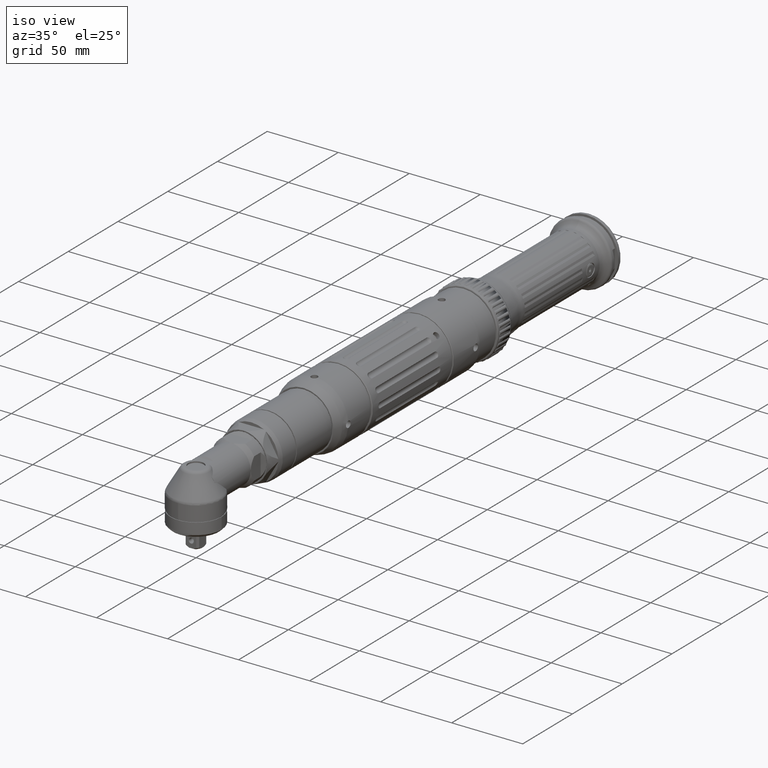
[diagram: clean part render]
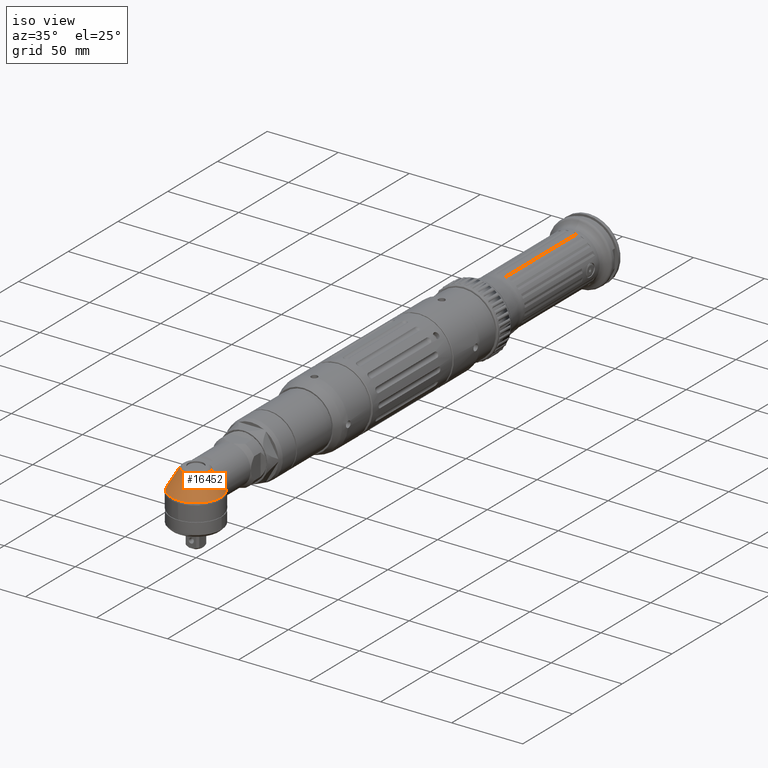
[diagram: same view with one face highlighted and labeled with its STEP entity id]
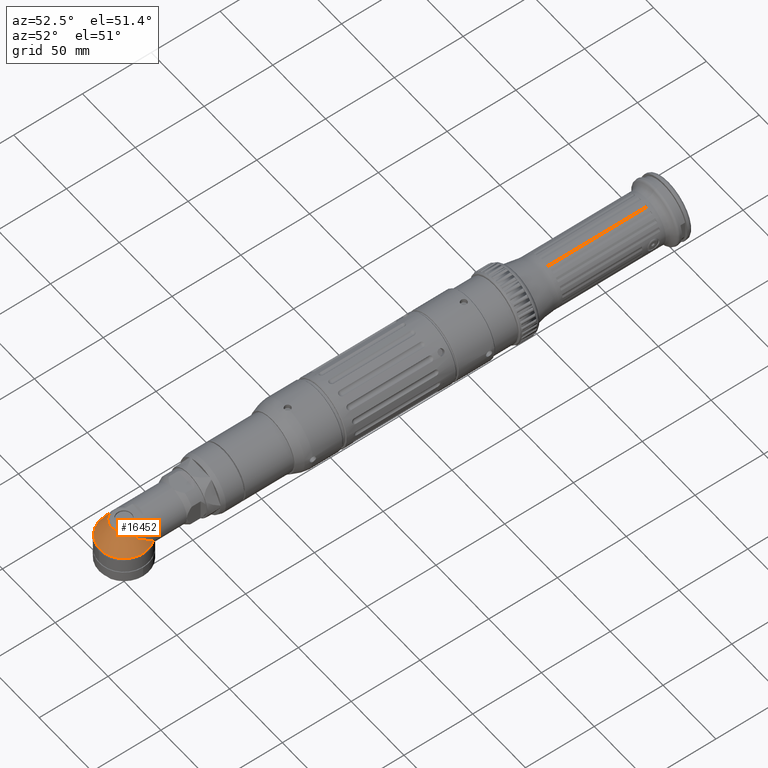
[diagram: same view with one face highlighted and labeled with its STEP entity id]
A machine part, iso view. The second image highlights one B-rep face of the part: STEP entity #16452.
A second angle (auxiliary view) of the same face is appended — the face is thin or edge-on in the first view.
In plain terms, the highlighted conical surface has half-angle 30 deg.
Its self-contained STEP definition (entity closure, byte-faithful):
#1109=LINE('',#30192,#1971);
#1110=LINE('',#30197,#1972);
#1971=VECTOR('',#23226,10.);
#1972=VECTOR('',#23231,10.);
#2054=CONICAL_SURFACE('',#18485,13.25,30.);
#2200=B_SPLINE_CURVE_WITH_KNOTS('',3,(#30262,#30263,#30264,#30265,#30266,
#30267,#30268,#30269,#30270,#30271),.UNSPECIFIED.,.F.,.F.,(4,2,2,2,4),(-0.705998900967671,
-0.444792625547526,-0.222396312773763,-0.111198156386882,0.),
 .UNSPECIFIED.);
#2201=B_SPLINE_CURVE_WITH_KNOTS('',3,(#30273,#30274,#30275,#30276,#30277,
#30278,#30279,#30280,#30281,#30282,#30283,#30284,#30285,#30286),
 .UNSPECIFIED.,.F.,.F.,(4,2,2,2,2,2,4),(3.40530504642907,3.50394886458541,
3.60259268274176,3.79988031905444,4.19445559167981,4.58903086430518,4.85221618798012),
 .UNSPECIFIED.);
#2204=B_SPLINE_CURVE_WITH_KNOTS('',3,(#30302,#30303,#30304,#30305,#30306,
#30307,#30308,#30309,#30310,#30311,#30312,#30313,#30314,#30315),
 .UNSPECIFIED.,.F.,.F.,(4,2,2,2,2,2,4),(1.95839390487804,2.22157922855296,
2.61615450117833,3.0107297738037,3.20801741011639,3.30666122827273,3.40530504642907),
 .UNSPECIFIED.);
#2205=B_SPLINE_CURVE_WITH_KNOTS('',3,(#30317,#30318,#30319,#30320,#30321,
#30322,#30323,#30324,#30325,#30326),.UNSPECIFIED.,.F.,.F.,(4,2,2,2,4),(3.17390460403441,
3.28510276042129,3.39630091680817,3.61869722958194,3.87990350500208),
 .UNSPECIFIED.);
#3699=FACE_OUTER_BOUND('',#4938,.T.);
#4938=EDGE_LOOP('',(#13710,#13711,#13712,#13713,#13714,#13715,#13716,#13717));
#5980=CIRCLE('',#18484,9.36602540378446);
#5981=CIRCLE('',#18486,17.5980762113533);
#7385=VERTEX_POINT('',#30190);
#7386=VERTEX_POINT('',#30191);
#7387=VERTEX_POINT('',#30195);
#7388=VERTEX_POINT('',#30196);
#7400=VERTEX_POINT('',#30245);
#7401=VERTEX_POINT('',#30272);
#7402=VERTEX_POINT('',#30295);
#7403=VERTEX_POINT('',#30316);
#9504=EDGE_CURVE('',#7385,#7386,#1109,.T.);
#9506=EDGE_CURVE('',#7387,#7388,#1110,.T.);
#9520=EDGE_CURVE('',#7400,#7387,#2200,.T.);
#9521=EDGE_CURVE('',#7388,#7401,#2201,.T.);
#9524=EDGE_CURVE('',#7402,#7385,#2204,.T.);
#9525=EDGE_CURVE('',#7386,#7403,#2205,.T.);
#9561=EDGE_CURVE('',#7403,#7400,#5980,.T.);
#9562=EDGE_CURVE('',#7401,#7402,#5981,.T.);
#13710=ORIENTED_EDGE('',*,*,#9562,.F.);
#13711=ORIENTED_EDGE('',*,*,#9521,.F.);
#13712=ORIENTED_EDGE('',*,*,#9506,.F.);
#13713=ORIENTED_EDGE('',*,*,#9520,.F.);
#13714=ORIENTED_EDGE('',*,*,#9561,.F.);
#13715=ORIENTED_EDGE('',*,*,#9525,.F.);
#13716=ORIENTED_EDGE('',*,*,#9504,.F.);
#13717=ORIENTED_EDGE('',*,*,#9524,.F.);
#16452=ADVANCED_FACE('',(#3699),#2054,.T.);
#18484=AXIS2_PLACEMENT_3D('',#30422,#23333,#23334);
#18485=AXIS2_PLACEMENT_3D('',#30423,#23335,#23336);
#18486=AXIS2_PLACEMENT_3D('',#30424,#23337,#23338);
#23226=DIRECTION('',(0.5,-4.16518804416773E-16,0.866025403784439));
#23231=DIRECTION('',(0.5,4.62138241812479E-16,-0.866025403784439));
#23333=DIRECTION('center_axis',(4.83392951289186E-16,-5.0729288216582E-16,
1.));
#23334=DIRECTION('ref_axis',(1.06851777353073E-16,-1.,-5.0729288216582E-16));
#23335=DIRECTION('center_axis',(-9.24389584179921E-18,5.0729288216582E-16,
-1.));
#23336=DIRECTION('ref_axis',(4.56194373957058E-17,-1.,-5.0729288216582E-16));
#23337=DIRECTION('center_axis',(2.22999789343787E-17,4.12661257837284E-16,
-1.));
#23338=DIRECTION('ref_axis',(1.06851777353074E-16,-1.,-4.12661257837284E-16));
#30190=CARTESIAN_POINT('',(-12.9873605377569,0.,5.22766355672545));
#30191=CARTESIAN_POINT('',(-11.0209697114409,-1.77635683940025E-14,8.63355237544209));
#30192=CARTESIAN_POINT('',(-13.25,-1.77635683940025E-14,4.77275866404775));
#30195=CARTESIAN_POINT('',(11.0209697114409,-3.5527136788005E-14,8.63355237544209));
#30196=CARTESIAN_POINT('',(12.9873605377569,0.,5.22766355672545));
#30197=CARTESIAN_POINT('',(13.25,-1.77635683940025E-14,4.77275866404775));
#30245=CARTESIAN_POINT('',(7.98435971133569,4.8961650160442,11.4999999999999));
#30262=CARTESIAN_POINT('Ctrl Pts',(7.98435971133569,4.8961650160442,11.4999999999999));
#30263=CARTESIAN_POINT('Ctrl Pts',(8.58109122359698,4.38062505155532,11.0856939960883));
#30264=CARTESIAN_POINT('Ctrl Pts',(9.11833806412106,3.81911233981468,10.6416979802047));
#30265=CARTESIAN_POINT('Ctrl Pts',(9.96174800663609,2.75159290856838,9.85120130894754));
#30266=CARTESIAN_POINT('Ctrl Pts',(10.2865087442621,2.261690489635,9.50477021551288));
#30267=CARTESIAN_POINT('Ctrl Pts',(10.6726741160042,1.49356799530521,9.062693836308));
#30268=CARTESIAN_POINT('Ctrl Pts',(10.7835015732714,1.23470723858199,8.92943600330155));
#30269=CARTESIAN_POINT('Ctrl Pts',(10.9560612316619,0.67200953980814,8.7168499814199));
#30270=CARTESIAN_POINT('Ctrl Pts',(11.0209697114409,0.370660521289583,8.63355237544207));
#30271=CARTESIAN_POINT('Ctrl Pts',(11.0209697114409,-3.5527136788005E-14,
8.63355237544207));
#30272=CARTESIAN_POINT('',(13.7255824734839,11.0136584341454,-2.75833024919363));
#30273=CARTESIAN_POINT('Ctrl Pts',(12.9873605377568,1.38777878078145E-16,
5.22766355672547));
#30274=CARTESIAN_POINT('Ctrl Pts',(12.9873605377568,0.328812727187806,5.22766355672547));
#30275=CARTESIAN_POINT('Ctrl Pts',(13.0149731918327,0.611384943635986,5.15949552771257));
#30276=CARTESIAN_POINT('Ctrl Pts',(13.0870600299516,1.13875577901023,4.97380905121899));
#30277=CARTESIAN_POINT('Ctrl Pts',(13.1320440476468,1.38296120990084,4.85480759324434));
#30278=CARTESIAN_POINT('Ctrl Pts',(13.2739690470323,2.10169545294093,4.45873115142923));
#30279=CARTESIAN_POINT('Ctrl Pts',(13.3768283902352,2.55749382319678,4.14550432945685));
#30280=CARTESIAN_POINT('Ctrl Pts',(13.6648516191554,3.9617366387581,3.12582885194596));
#30281=CARTESIAN_POINT('Ctrl Pts',(13.826235647691,4.92235219835814,2.3482354962127));
#30282=CARTESIAN_POINT('Ctrl Pts',(14.0062417895303,6.91560433181142,0.710064637287446));
#30283=CARTESIAN_POINT('Ctrl Pts',(14.0262380501173,7.9447906766347,-0.154835893213721));
#30284=CARTESIAN_POINT('Ctrl Pts',(13.9199998022954,9.65734875289019,-1.60356852657814));
#30285=CARTESIAN_POINT('Ctrl Pts',(13.840726626019,10.3415958326059,-2.1853674712827));
#30286=CARTESIAN_POINT('Ctrl Pts',(13.7255824734835,11.0136584341476,-2.75833024919131));
#30295=CARTESIAN_POINT('',(-13.7255824734839,11.0136584341455,-2.75833024919363));
#30302=CARTESIAN_POINT('Ctrl Pts',(-13.7255824734835,11.0136584341475,-2.7583302491912));
#30303=CARTESIAN_POINT('Ctrl Pts',(-13.840726626019,10.3415958326058,-2.18536747128264));
#30304=CARTESIAN_POINT('Ctrl Pts',(-13.9199998022954,9.65734875289016,-1.60356852657811));
#30305=CARTESIAN_POINT('Ctrl Pts',(-14.0262380501173,7.9447906766347,-0.154835893213717));
#30306=CARTESIAN_POINT('Ctrl Pts',(-14.0062417895303,6.91560433181142,0.710064637287457));
#30307=CARTESIAN_POINT('Ctrl Pts',(-13.826235647691,4.92235219835814,2.34823549621271));
#30308=CARTESIAN_POINT('Ctrl Pts',(-13.6648516191554,3.9617366387581,3.12582885194595));
#30309=CARTESIAN_POINT('Ctrl Pts',(-13.3768283902352,2.55749382319678,4.14550432945685));
#30310=CARTESIAN_POINT('Ctrl Pts',(-13.2739690470323,2.10169545294093,4.45873115142922));
#30311=CARTESIAN_POINT('Ctrl Pts',(-13.1320440476468,1.38296120990084,4.85480759324434));
#30312=CARTESIAN_POINT('Ctrl Pts',(-13.0870600299516,1.13875577901023,4.97380905121897));
#30313=CARTESIAN_POINT('Ctrl Pts',(-13.0149731918327,0.611384943635986,
5.15949552771256));
#30314=CARTESIAN_POINT('Ctrl Pts',(-12.9873605377568,0.328812727187806,
5.22766355672547));
#30315=CARTESIAN_POINT('Ctrl Pts',(-12.9873605377568,3.46944695195361E-16,
5.22766355672547));
#30316=CARTESIAN_POINT('',(-7.98435971133568,4.8961650160442,11.4999999999999));
#30317=CARTESIAN_POINT('Ctrl Pts',(-11.0209697114409,-1.90819582357449E-14,
8.63355237544207));
#30318=CARTESIAN_POINT('Ctrl Pts',(-11.0209697114409,0.370660521289582,
8.63355237544207));
#30319=CARTESIAN_POINT('Ctrl Pts',(-10.956061231662,0.672009539808176,8.71684998141989));
#30320=CARTESIAN_POINT('Ctrl Pts',(-10.7835015732714,1.23470723858203,8.92943600330154));
#30321=CARTESIAN_POINT('Ctrl Pts',(-10.6726741160042,1.49356799530521,9.062693836308));
#30322=CARTESIAN_POINT('Ctrl Pts',(-10.2865087442621,2.26169048963499,9.50477021551288));
#30323=CARTESIAN_POINT('Ctrl Pts',(-9.96174800663609,2.75159290856838,9.85120130894754));
#30324=CARTESIAN_POINT('Ctrl Pts',(-9.11833806412106,3.81911233981466,10.6416979802047));
#30325=CARTESIAN_POINT('Ctrl Pts',(-8.58109122359699,4.38062505155532,11.0856939960883));
#30326=CARTESIAN_POINT('Ctrl Pts',(-7.98435971133568,4.8961650160442,11.4999999999999));
#30422=CARTESIAN_POINT('Origin',(1.59314395819053E-16,-1.77635683940025E-14,
11.4999999999999));
#30423=CARTESIAN_POINT('Origin',(-1.62338247711477E-15,-1.77635683940025E-14,
4.77275866404775));
#30424=CARTESIAN_POINT('Origin',(1.53971507690355E-15,-1.77635683940025E-14,
-2.75833024919778));